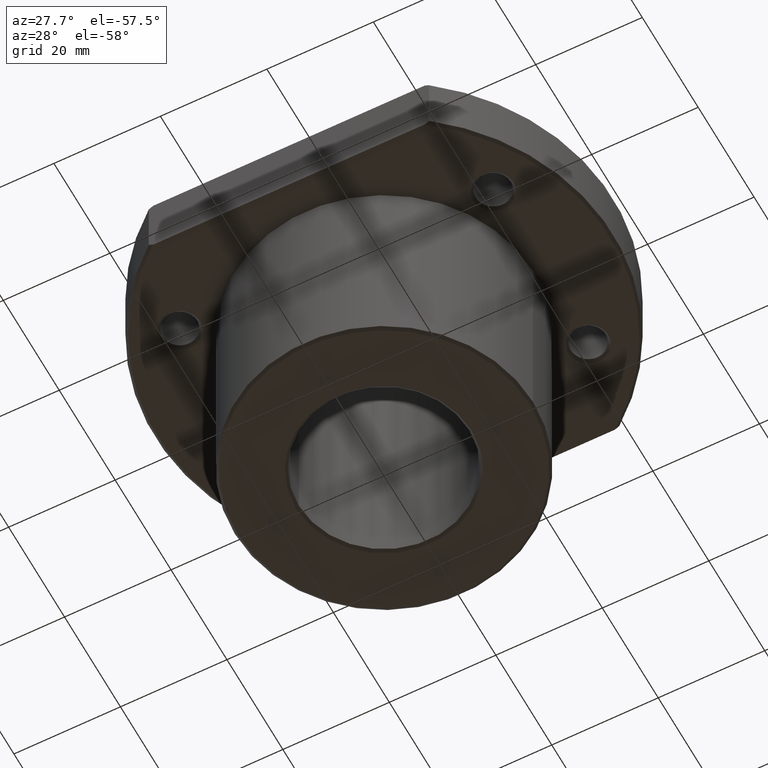
[diagram: clean part render]
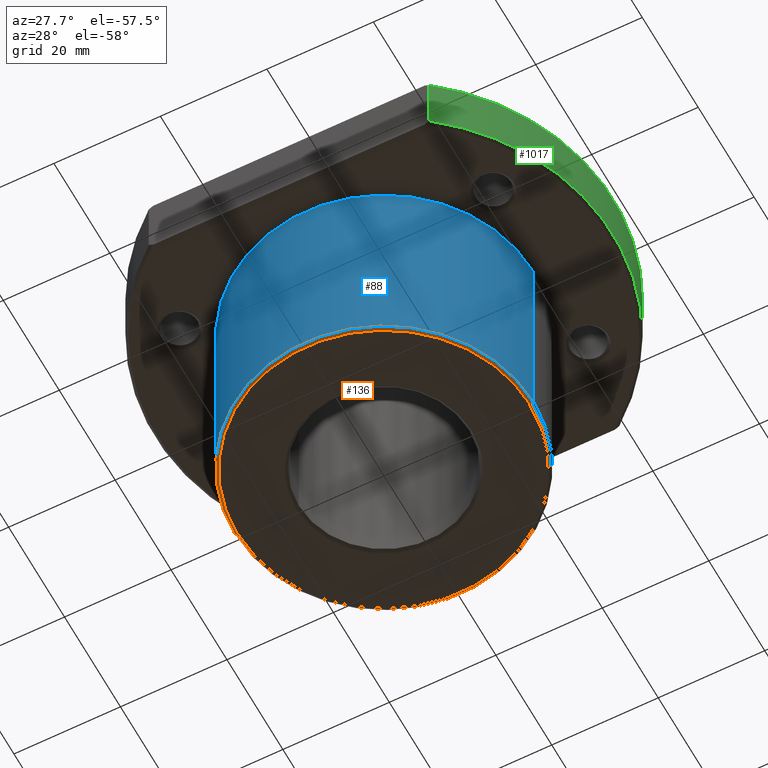
[diagram: same view with three faces highlighted in distinct colors, each labeled with its STEP entity id]
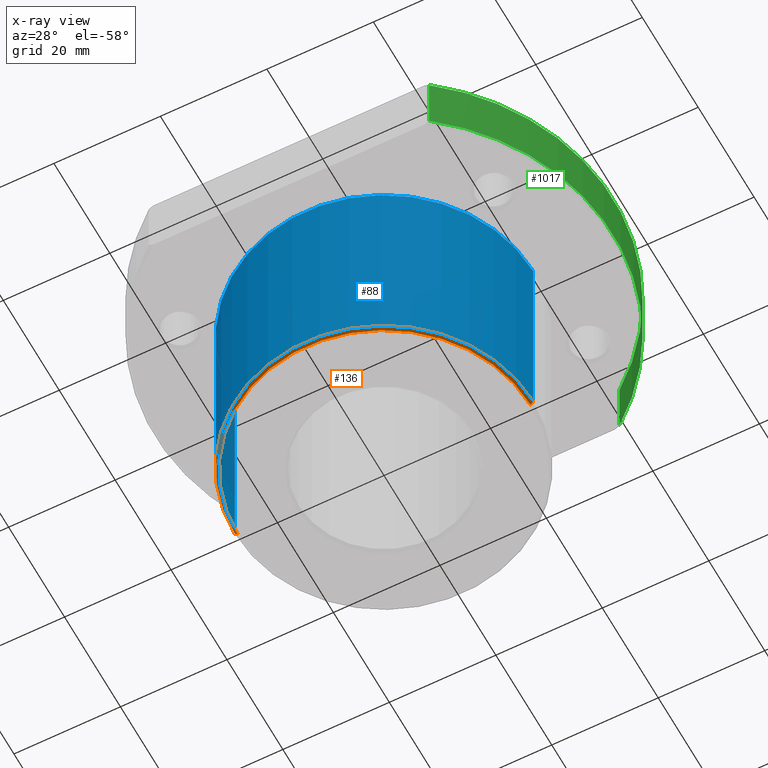
[diagram: x-ray of the same camera — body ghosted, the three highlighted faces saturated]
A machine part, auxiliary view with three faces highlighted in distinct colors.
The next image is the same camera in x-ray (body ghosted, the three faces saturated) — at least one of them is partly hidden behind the body in this view.
Their STEP definitions:

[orange] entity #136 — the highlighted conical surface has half-angle 45 deg.
#79=AXIS2_PLACEMENT_3D('Circle Axis2P3D',#77,#78,$) ;
#123=AXIS2_PLACEMENT_3D('Cone Axis2P3D',#120,#121,#122) ;
#127=AXIS2_PLACEMENT_3D('Circle Axis2P3D',#125,#126,$) ;
#41=CARTESIAN_POINT('Vertex',(-28.,3.4288977907E-015,0.5)) ;
#57=CARTESIAN_POINT('Vertex',(28.,-6.85779558141E-015,0.5)) ;
#77=CARTESIAN_POINT('Axis2P3D Location',(0.,0.,0.5)) ;
#94=CARTESIAN_POINT('Line Origine',(27.75,-1.79005326975E-015,0.25)) ;
#98=CARTESIAN_POINT('Vertex',(27.5,-3.96149855541E-015,0.)) ;
#105=CARTESIAN_POINT('Vertex',(-27.5,3.70843264356E-007,0.)) ;
#108=CARTESIAN_POINT('Line Origine',(-27.75,3.7421456935E-007,0.25)) ;
#120=CARTESIAN_POINT('Axis2P3D Location',(9.41469124882E-014,-7.1054273576E-015,-27.5)) ;
#125=CARTESIAN_POINT('Axis2P3D Location',(-3.5527136788E-015,-7.1054273576E-015,8.52651282912E-014)) ;
#78=DIRECTION('Axis2P3D Direction',(0.,0.,1.)) ;
#95=DIRECTION('Vector Direction',(0.707106781187,-9.91314895856E-015,0.707106781187)) ;
#109=DIRECTION('Vector Direction',(-0.707106781187,9.53547336151E-009,0.707106781187)) ;
#121=DIRECTION('Axis2P3D Direction',(-3.5527136788E-015,0.,1.)) ;
#122=DIRECTION('Axis2P3D XDirection',(-0.863110358545,0.505015355185,-3.02930473672E-015)) ;
#126=DIRECTION('Axis2P3D Direction',(-9.06085904876E-016,-1.54857099334E-015,1.)) ;
#96=VECTOR('Line Direction',#95,1.) ;
#110=VECTOR('Line Direction',#109,1.) ;
#131=ORIENTED_EDGE('',*,*,#112,.T.) ;
#132=ORIENTED_EDGE('',*,*,#129,.T.) ;
#133=ORIENTED_EDGE('',*,*,#100,.F.) ;
#134=ORIENTED_EDGE('',*,*,#81,.F.) ;
#136=ADVANCED_FACE('',(#135),#124,.T.) ;
#80=CIRCLE('generated circle',#79,28.) ;
#128=CIRCLE('generated circle',#127,27.5) ;
#124=CONICAL_SURFACE('Cone',#123,0.,0.785398163397) ;
#81=EDGE_CURVE('',#42,#58,#80,.T.) ;
#100=EDGE_CURVE('',#58,#99,#97,.F.) ;
#112=EDGE_CURVE('',#42,#106,#111,.F.) ;
#129=EDGE_CURVE('',#106,#99,#128,.T.) ;
#130=EDGE_LOOP('',(#131,#132,#133,#134)) ;
#135=FACE_OUTER_BOUND('',#130,.T.) ;
#97=LINE('Line',#94,#96) ;
#111=LINE('Line',#108,#110) ;
#42=VERTEX_POINT('',#41) ;
#58=VERTEX_POINT('',#57) ;
#99=VERTEX_POINT('',#98) ;
#106=VERTEX_POINT('',#105) ;

[blue] entity #88 — the highlighted cylindrical surface (partial cylindrical patch) has radius 28 mm, axis along (0, 0, 1).
#35=AXIS2_PLACEMENT_3D('Cylinder Axis2P3D',#32,#33,#34) ;
#74=AXIS2_PLACEMENT_3D('Circle Axis2P3D',#72,#73,$) ;
#79=AXIS2_PLACEMENT_3D('Circle Axis2P3D',#77,#78,$) ;
#32=CARTESIAN_POINT('Axis2P3D Location',(0.,0.,20.5)) ;
#37=CARTESIAN_POINT('Line Origine',(-28.,3.4288977907E-015,20.5)) ;
#41=CARTESIAN_POINT('Vertex',(-28.,3.4288977907E-015,0.5)) ;
#43=CARTESIAN_POINT('Vertex',(-28.,3.4288977907E-015,41.)) ;
#50=CARTESIAN_POINT('Vertex',(28.,0.,41.)) ;
#53=CARTESIAN_POINT('Line Origine',(28.,0.,20.5)) ;
#57=CARTESIAN_POINT('Vertex',(28.,-6.85779558141E-015,0.5)) ;
#72=CARTESIAN_POINT('Axis2P3D Location',(0.,0.,41.)) ;
#77=CARTESIAN_POINT('Axis2P3D Location',(0.,0.,0.5)) ;
#33=DIRECTION('Axis2P3D Direction',(0.,0.,1.)) ;
#34=DIRECTION('Axis2P3D XDirection',(1.,0.,0.)) ;
#38=DIRECTION('Vector Direction',(0.,0.,1.)) ;
#54=DIRECTION('Vector Direction',(0.,0.,1.)) ;
#73=DIRECTION('Axis2P3D Direction',(0.,0.,1.)) ;
#78=DIRECTION('Axis2P3D Direction',(0.,0.,1.)) ;
#39=VECTOR('Line Direction',#38,1.) ;
#55=VECTOR('Line Direction',#54,1.) ;
#83=ORIENTED_EDGE('',*,*,#59,.T.) ;
#84=ORIENTED_EDGE('',*,*,#76,.F.) ;
#85=ORIENTED_EDGE('',*,*,#45,.F.) ;
#86=ORIENTED_EDGE('',*,*,#81,.T.) ;
#88=ADVANCED_FACE('',(#87),#36,.T.) ;
#75=CIRCLE('generated circle',#74,28.) ;
#80=CIRCLE('generated circle',#79,28.) ;
#36=CYLINDRICAL_SURFACE('generated cylinder',#35,28.) ;
#45=EDGE_CURVE('',#42,#44,#40,.T.) ;
#59=EDGE_CURVE('',#58,#51,#56,.T.) ;
#76=EDGE_CURVE('',#44,#51,#75,.T.) ;
#81=EDGE_CURVE('',#42,#58,#80,.T.) ;
#82=EDGE_LOOP('',(#83,#84,#85,#86)) ;
#87=FACE_OUTER_BOUND('',#82,.T.) ;
#40=LINE('Line',#37,#39) ;
#56=LINE('Line',#53,#55) ;
#42=VERTEX_POINT('',#41) ;
#44=VERTEX_POINT('',#43) ;
#51=VERTEX_POINT('',#50) ;
#58=VERTEX_POINT('',#57) ;

[green] entity #1017 — the highlighted cylindrical surface (partial cylindrical patch) has radius 43 mm, axis along (0, 0, 1).
#969=AXIS2_PLACEMENT_3D('Circle Axis2P3D',#967,#968,$) ;
#990=AXIS2_PLACEMENT_3D('Cylinder Axis2P3D',#987,#988,#989) ;
#1008=AXIS2_PLACEMENT_3D('Circle Axis2P3D',#1006,#1007,$) ;
#964=CARTESIAN_POINT('Vertex',(26.3248931622,-34.,52.5)) ;
#967=CARTESIAN_POINT('Axis2P3D Location',(1.42108547151E-014,-7.93283624547E-016,52.5)) ;
#971=CARTESIAN_POINT('Vertex',(26.3248931622,34.,52.5)) ;
#987=CARTESIAN_POINT('Axis2P3D Location',(0.,0.,47.)) ;
#992=CARTESIAN_POINT('Line Origine',(26.3248931622,34.,47.)) ;
#996=CARTESIAN_POINT('Vertex',(26.3248931622,34.,41.5)) ;
#999=CARTESIAN_POINT('Line Origine',(26.3248931622,-34.,47.)) ;
#1003=CARTESIAN_POINT('Vertex',(26.3248931622,-34.,41.5)) ;
#1006=CARTESIAN_POINT('Axis2P3D Location',(0.,0.,41.5)) ;
#968=DIRECTION('Axis2P3D Direction',(-1.81251667153E-014,2.34032671201E-014,1.)) ;
#988=DIRECTION('Axis2P3D Direction',(0.,0.,1.)) ;
#989=DIRECTION('Axis2P3D XDirection',(0.612206817725,-0.790697674419,0.)) ;
#993=DIRECTION('Vector Direction',(0.,0.,1.)) ;
#1000=DIRECTION('Vector Direction',(0.,0.,1.)) ;
#1007=DIRECTION('Axis2P3D Direction',(0.,0.,1.)) ;
#994=VECTOR('Line Direction',#993,1.) ;
#1001=VECTOR('Line Direction',#1000,1.) ;
#1012=ORIENTED_EDGE('',*,*,#998,.T.) ;
#1013=ORIENTED_EDGE('',*,*,#973,.F.) ;
#1014=ORIENTED_EDGE('',*,*,#1005,.F.) ;
#1015=ORIENTED_EDGE('',*,*,#1010,.T.) ;
#1017=ADVANCED_FACE('',(#1016),#991,.T.) ;
#970=CIRCLE('generated circle',#969,43.) ;
#1009=CIRCLE('generated circle',#1008,43.) ;
#991=CYLINDRICAL_SURFACE('generated cylinder',#990,43.) ;
#973=EDGE_CURVE('',#965,#972,#970,.T.) ;
#998=EDGE_CURVE('',#997,#972,#995,.T.) ;
#1005=EDGE_CURVE('',#1004,#965,#1002,.T.) ;
#1010=EDGE_CURVE('',#1004,#997,#1009,.T.) ;
#1011=EDGE_LOOP('',(#1012,#1013,#1014,#1015)) ;
#1016=FACE_OUTER_BOUND('',#1011,.T.) ;
#995=LINE('Line',#992,#994) ;
#1002=LINE('Line',#999,#1001) ;
#965=VERTEX_POINT('',#964) ;
#972=VERTEX_POINT('',#971) ;
#997=VERTEX_POINT('',#996) ;
#1004=VERTEX_POINT('',#1003) ;